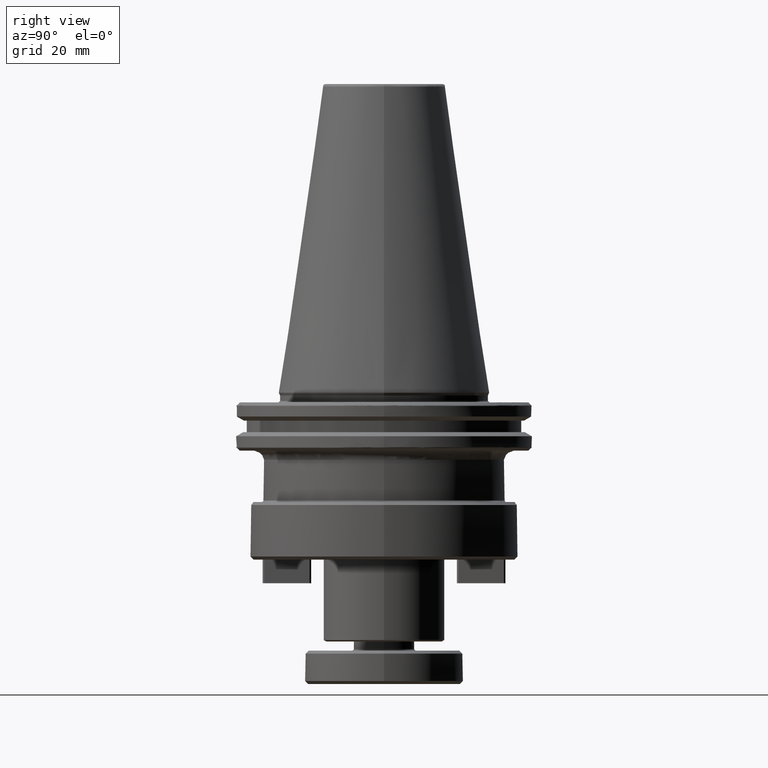
[diagram: clean part render]
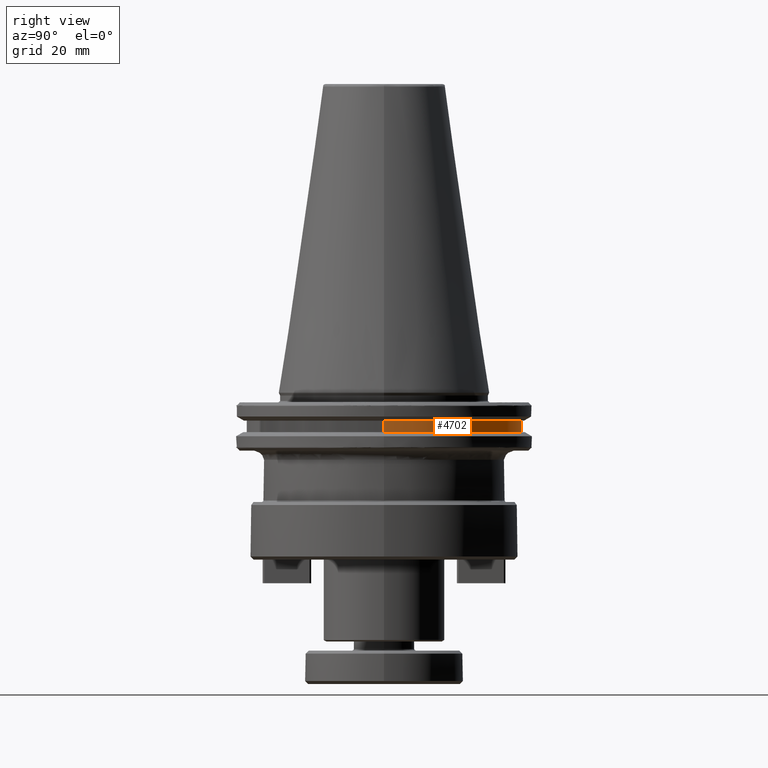
[diagram: same view with one face highlighted and labeled with its STEP entity id]
A machine part, right view. The second image highlights one B-rep face of the part: STEP entity #4702.
In plain terms, the highlighted cylindrical surface (partial cylindrical patch) has radius 45.5 mm, axis along (0, 0, 1).
Its self-contained STEP definition (entity closure, byte-faithful):
#107 = EDGE_CURVE ( 'NONE', #1025, #3618, #2984, .T. ) ;
#208 = ORIENTED_EDGE ( 'NONE', *, *, #107, .F. ) ;
#229 = DIRECTION ( 'NONE',  ( 0.0000000000000000000, 0.0000000000000000000, 1.000000000000000000 ) ) ;
#233 = CARTESIAN_POINT ( 'NONE',  ( -45.50000000000000000, 5.572142936120457100E-015, 113.5216080541959500 ) ) ;
#282 = VERTEX_POINT ( 'NONE', #1760 ) ;
#597 = CIRCLE ( 'NONE', #4564, 45.50000000000000000 ) ;
#663 = EDGE_CURVE ( 'NONE', #2978, #282, #3860, .T. ) ;
#1025 = VERTEX_POINT ( 'NONE', #4762 ) ;
#1538 = AXIS2_PLACEMENT_3D ( 'NONE', #4206, #2030, #1608 ) ;
#1608 = DIRECTION ( 'NONE',  ( 1.000000000000000000, 0.0000000000000000000, 0.0000000000000000000 ) ) ;
#1703 = CYLINDRICAL_SURFACE ( 'NONE', #2531, 45.50000000000000000 ) ;
#1760 = CARTESIAN_POINT ( 'NONE',  ( -45.50000000000000000, 5.572142936120457100E-015, -9.199999999999999300 ) ) ;
#1945 = CARTESIAN_POINT ( 'NONE',  ( 0.0000000000000000000, 0.0000000000000000000, 113.5216080541959500 ) ) ;
#2005 = CARTESIAN_POINT ( 'NONE',  ( 0.0000000000000000000, 0.0000000000000000000, -9.199999999999999300 ) ) ;
#2012 = DIRECTION ( 'NONE',  ( -0.0000000000000000000, -0.0000000000000000000, -1.000000000000000000 ) ) ;
#2023 = DIRECTION ( 'NONE',  ( 1.000000000000000000, 0.0000000000000000000, 0.0000000000000000000 ) ) ;
#2030 = DIRECTION ( 'NONE',  ( 0.0000000000000000000, 0.0000000000000000000, 1.000000000000000000 ) ) ;
#2092 = ORIENTED_EDGE ( 'NONE', *, *, #2389, .T. ) ;
#2389 = EDGE_CURVE ( 'NONE', #282, #3618, #597, .T. ) ;
#2531 = AXIS2_PLACEMENT_3D ( 'NONE', #1945, #3905, #3190 ) ;
#2679 = DIRECTION ( 'NONE',  ( 0.0000000000000000000, 0.0000000000000000000, 1.000000000000000000 ) ) ;
#2978 = VERTEX_POINT ( 'NONE', #4231 ) ;
#2984 = LINE ( 'NONE', #4205, #3099 ) ;
#3099 = VECTOR ( 'NONE', #2679, 1000.000000000000000 ) ;
#3190 = DIRECTION ( 'NONE',  ( 1.000000000000000000, 0.0000000000000000000, 0.0000000000000000000 ) ) ;
#3618 = VERTEX_POINT ( 'NONE', #4883 ) ;
#3707 = ORIENTED_EDGE ( 'NONE', *, *, #4041, .T. ) ;
#3860 = LINE ( 'NONE', #233, #3906 ) ;
#3905 = DIRECTION ( 'NONE',  ( 0.0000000000000000000, 0.0000000000000000000, 1.000000000000000000 ) ) ;
#3906 = VECTOR ( 'NONE', #229, 1000.000000000000000 ) ;
#4041 = EDGE_CURVE ( 'NONE', #1025, #2978, #4600, .T. ) ;
#4205 = CARTESIAN_POINT ( 'NONE',  ( 45.50000000000000000, 0.0000000000000000000, 113.5216080541959500 ) ) ;
#4206 = CARTESIAN_POINT ( 'NONE',  ( 0.0000000000000000000, 0.0000000000000000000, -13.00000000000001100 ) ) ;
#4231 = CARTESIAN_POINT ( 'NONE',  ( -45.50000000000000000, 5.572142936120457100E-015, -13.00000000000001100 ) ) ;
#4564 = AXIS2_PLACEMENT_3D ( 'NONE', #2005, #2012, #2023 ) ;
#4600 = CIRCLE ( 'NONE', #1538, 45.50000000000000000 ) ;
#4601 = FACE_OUTER_BOUND ( 'NONE', #4782, .T. ) ;
#4702 = ADVANCED_FACE ( 'NONE', ( #4601 ), #1703, .T. ) ;
#4724 = ORIENTED_EDGE ( 'NONE', *, *, #663, .T. ) ;
#4762 = CARTESIAN_POINT ( 'NONE',  ( 45.50000000000000000, 0.0000000000000000000, -13.00000000000001100 ) ) ;
#4782 = EDGE_LOOP ( 'NONE', ( #3707, #4724, #2092, #208 ) ) ;
#4883 = CARTESIAN_POINT ( 'NONE',  ( 45.50000000000000000, 0.0000000000000000000, -9.199999999999999300 ) ) ;